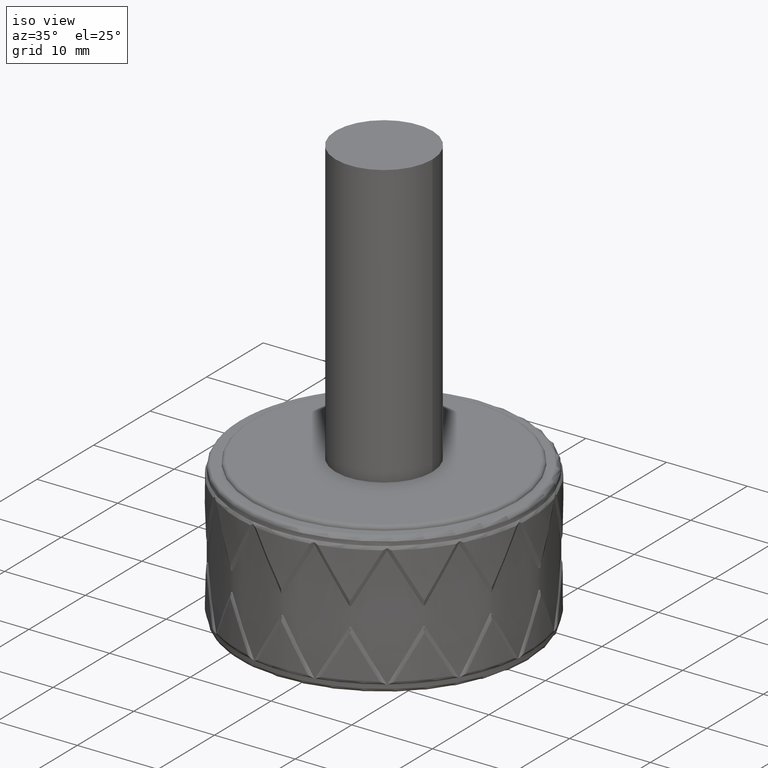
[diagram: clean part render]
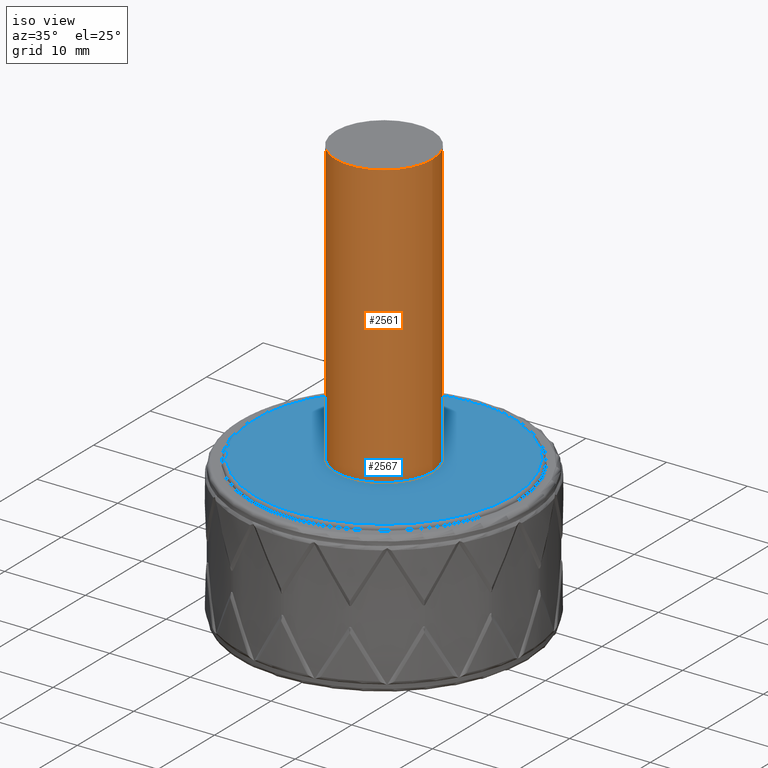
[diagram: same view with the hole feature highlighted: cylindrical wall and planar end face, labeled with their STEP entity ids]
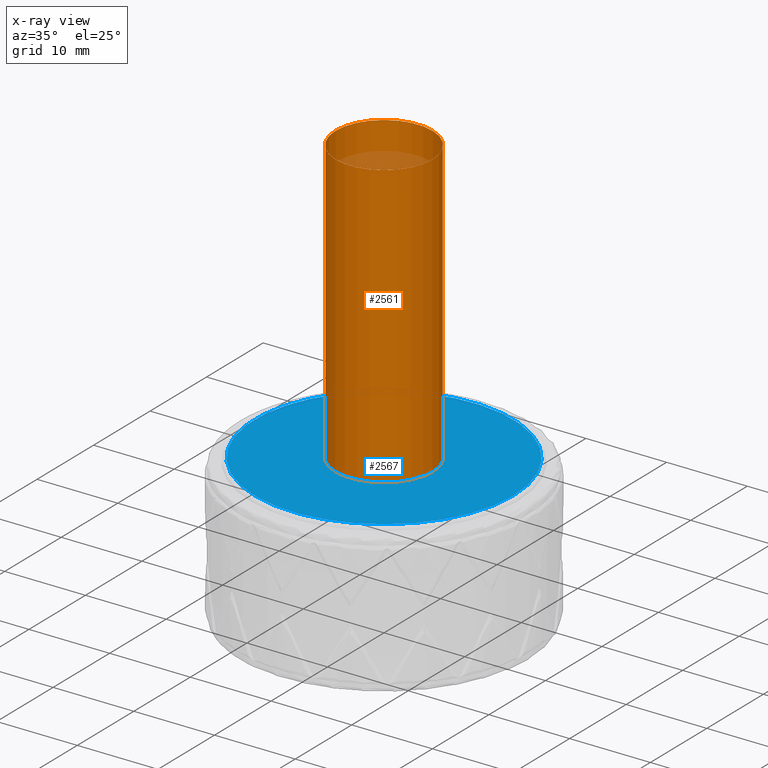
[diagram: x-ray of the same camera — body ghosted, the hole faces saturated]
A machine part, iso view. The highlighted faces form one hole feature of diameter 12 mm: the cylindrical wall (entity #2561, orange) and its adjacent planar end face (entity #2567, blue) — they share a circular edge in the B-rep.
The next image is the same camera in x-ray (body ghosted, the hole faces saturated) — the bore reads through the body.
Wall:
#551=FACE_BOUND('',#755,.T.);
#584=FACE_OUTER_BOUND('',#754,.T.);
#754=EDGE_LOOP('',(#1686));
#755=EDGE_LOOP('',(#1687));
#957=CIRCLE('',#2734,6.);
#958=CIRCLE('',#2735,6.);
#979=VERTEX_POINT('',#2959);
#980=VERTEX_POINT('',#2961);
#1265=EDGE_CURVE('',#979,#979,#957,.T.);
#1266=EDGE_CURVE('',#980,#980,#958,.T.);
#1686=ORIENTED_EDGE('',*,*,#1265,.F.);
#1687=ORIENTED_EDGE('',*,*,#1266,.F.);
#2528=CYLINDRICAL_SURFACE('',#2733,6.);
#2561=ADVANCED_FACE('',(#584,#551),#2528,.T.);
#2733=AXIS2_PLACEMENT_3D('',#2958,#2809,#2810);
#2734=AXIS2_PLACEMENT_3D('',#2960,#2811,#2812);
#2735=AXIS2_PLACEMENT_3D('',#2962,#2813,#2814);
#2809=DIRECTION('center_axis',(0.,0.,1.));
#2810=DIRECTION('ref_axis',(1.,0.,0.));
#2811=DIRECTION('center_axis',(0.,0.,1.));
#2812=DIRECTION('ref_axis',(1.,0.,0.));
#2813=DIRECTION('center_axis',(0.,0.,-1.));
#2814=DIRECTION('ref_axis',(1.,0.,0.));
#2958=CARTESIAN_POINT('Origin',(0.,0.,18.));
#2959=CARTESIAN_POINT('',(6.,0.,53.));
#2960=CARTESIAN_POINT('Origin',(0.,0.,53.));
#2961=CARTESIAN_POINT('',(6.,0.,18.));
#2962=CARTESIAN_POINT('Origin',(0.,0.,18.));
End face:
#544=PLANE('',#2747);
#571=FACE_BOUND('',#781,.T.);
#590=FACE_OUTER_BOUND('',#780,.T.);
#780=EDGE_LOOP('',(#1801));
#781=EDGE_LOOP('',(#1802));
#958=CIRCLE('',#2735,6.);
#964=CIRCLE('',#2746,16.);
#980=VERTEX_POINT('',#2961);
#1090=VERTEX_POINT('',#4546);
#1266=EDGE_CURVE('',#980,#980,#958,.T.);
#1376=EDGE_CURVE('',#1090,#1090,#964,.T.);
#1801=ORIENTED_EDGE('',*,*,#1376,.F.);
#1802=ORIENTED_EDGE('',*,*,#1266,.T.);
#2567=ADVANCED_FACE('',(#590,#571),#544,.T.);
#2735=AXIS2_PLACEMENT_3D('',#2962,#2813,#2814);
#2746=AXIS2_PLACEMENT_3D('',#4547,#2835,#2836);
#2747=AXIS2_PLACEMENT_3D('',#4548,#2837,#2838);
#2813=DIRECTION('center_axis',(0.,0.,-1.));
#2814=DIRECTION('ref_axis',(1.,0.,0.));
#2835=DIRECTION('center_axis',(0.,0.,-1.));
#2836=DIRECTION('ref_axis',(-1.,0.,0.));
#2837=DIRECTION('center_axis',(0.,0.,1.));
#2838=DIRECTION('ref_axis',(1.,0.,0.));
#2961=CARTESIAN_POINT('',(6.,0.,18.));
#2962=CARTESIAN_POINT('Origin',(0.,0.,18.));
#4546=CARTESIAN_POINT('',(16.,-1.95943487863577E-15,18.));
#4547=CARTESIAN_POINT('Origin',(0.,0.,18.));
#4548=CARTESIAN_POINT('Origin',(-1.06553885377178E-15,0.,18.));